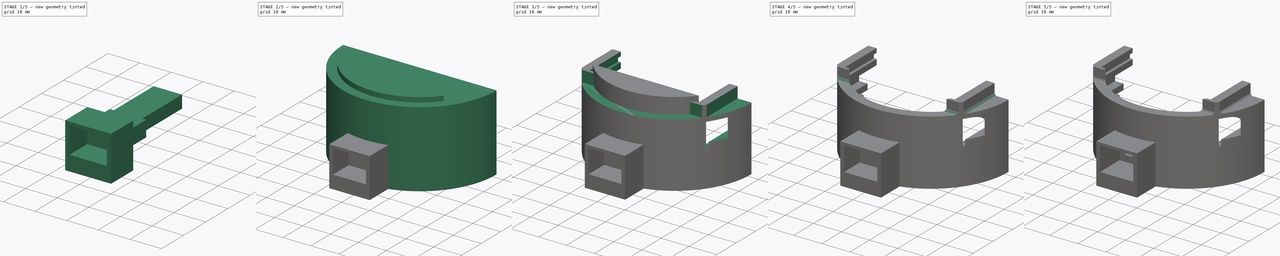
[diagram: build sequence overview — one tinted view per stage of 5, left to right]
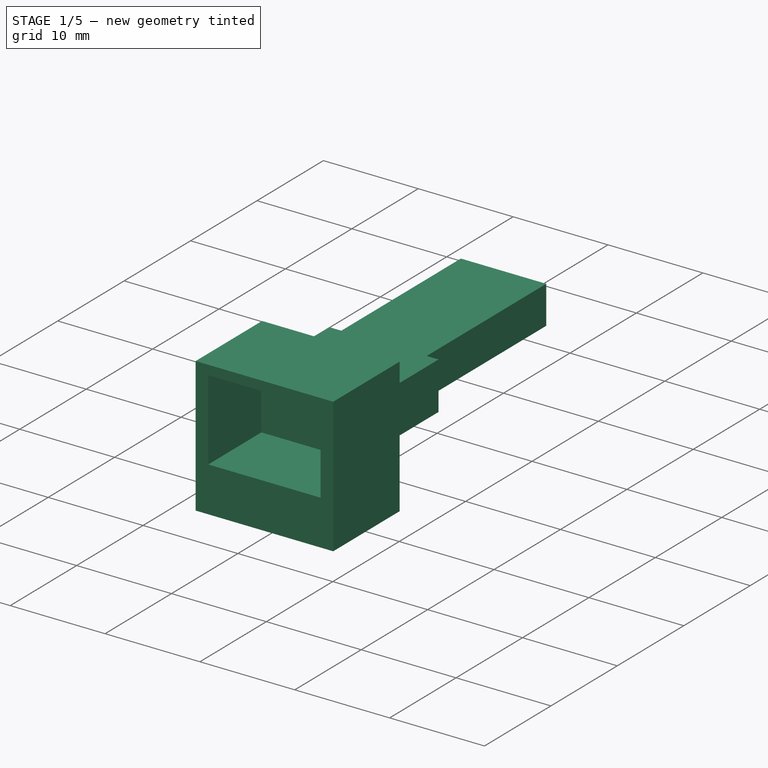
[diagram: stage 1 of 5 — iso view after this stage's code; geometry added in this stage tinted green]
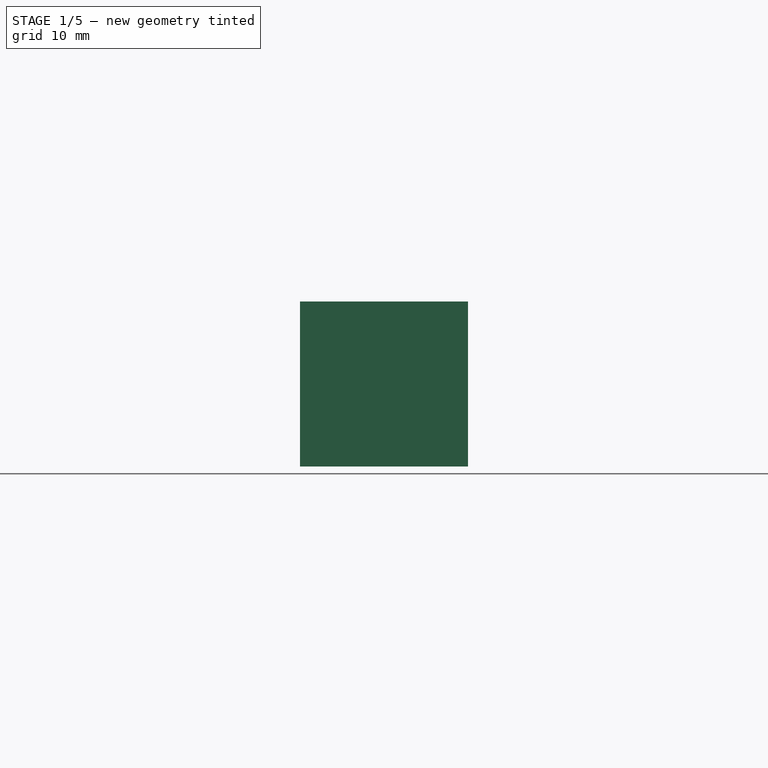
[diagram: stage 1 of 5 — front view after this stage's code; geometry added in this stage tinted green]
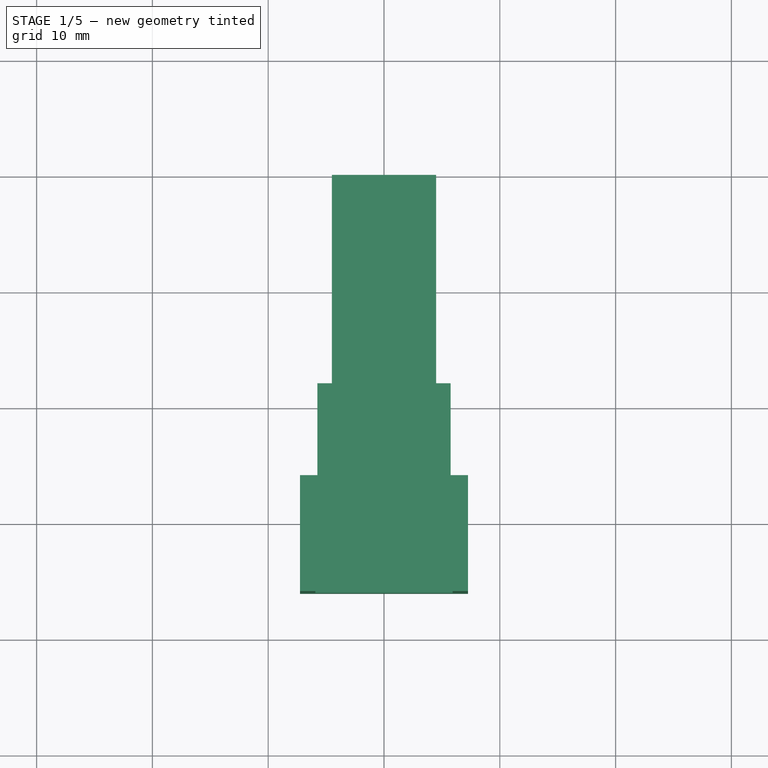
[diagram: stage 1 of 5 — top view after this stage's code; geometry added in this stage tinted green]
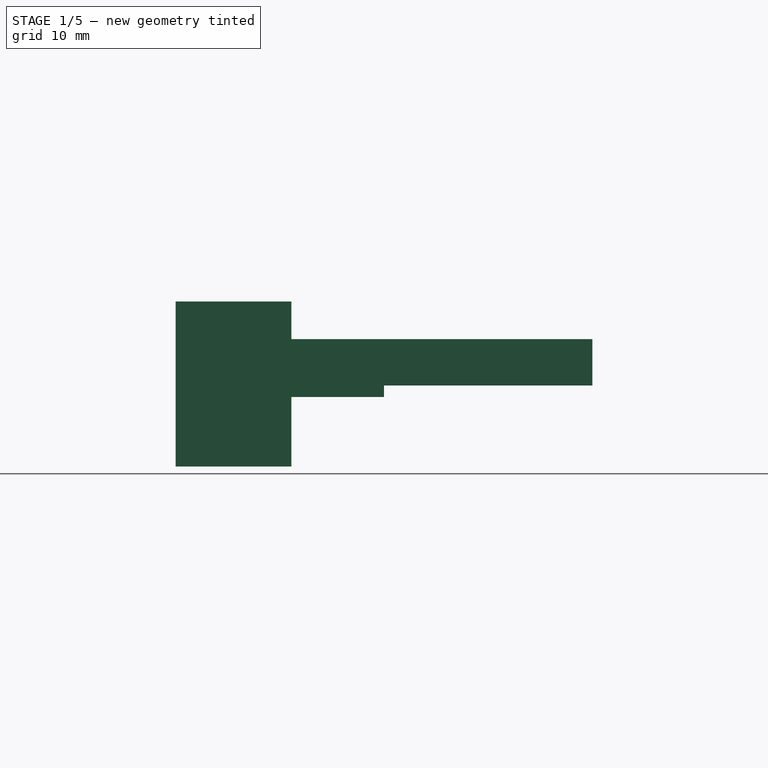
[diagram: stage 1 of 5 — right view after this stage's code; geometry added in this stage tinted green]
FCSTD DOCUMENT  (FreeCAD 0.14R3691 (Git))
Label: PartMount_7-4
License: CC-BY 3.0
LicenseURL: http://creativecommons.org/licenses/by/3.0/
objects: Sketcher::SketchObject×14, Part::Extrusion×13, Part::Cut×8, PartDesign::Fillet×7, Part::MultiFuse×4
note: 46 computed .brp shape members not serialized (recipe doc carries the construction recipe); baked Part::Feature solids carry a one-line shape summary decoded from their .brp

FEATURE [Sketcher::SketchObject] Sketch009  label="PlugCut"
  Placement = pos=(0,-26,0) rot=(-1,0,0;4.71239rad)
  sketch-geometry (4):
    g0: LineSegment StartX=-5.925 StartY=4.25 StartZ=0 EndX=5.925 EndY=4.25 EndZ=0
    g1: LineSegment StartX=5.925 StartY=4.25 StartZ=0 EndX=5.925 EndY=-4.25 EndZ=0
    g2: LineSegment StartX=5.925 StartY=-4.25 StartZ=0 EndX=-5.925 EndY=-4.25 EndZ=0
    g3: LineSegment StartX=-5.925 StartY=-4.25 StartZ=0 EndX=-5.925 EndY=4.25 EndZ=0
  constraints (12):
    c: Coincident(g0,g1)
    c: Coincident(g1,g2)
    c: Coincident(g2,g3)
    c: Coincident(g3,g0)
    c: Horizontal(g0)
    c: Horizontal(g2)
    c: Vertical(g1)
    c: Vertical(g3)
    c: DistanceY(g3) = 8.5
    c: DistanceX(g0) = 11.85
    c: Symmetric(g0,g0,g-2)
    c: Distance(g-1,g0) = 4.25
FEATURE [Sketcher::SketchObject] Sketch010  label="JackCut"
  Placement = pos=(0,0,0) rot=(-1,0,0;4.71239rad)
  sketch-geometry (4):
    g0: LineSegment StartX=4.5 StartY=2 StartZ=0 EndX=-4.5 EndY=2 EndZ=0
    g1: LineSegment StartX=-4.5 StartY=2 StartZ=0 EndX=-4.5 EndY=-2 EndZ=0
    g2: LineSegment StartX=-4.5 StartY=-2 StartZ=0 EndX=4.5 EndY=-2 EndZ=0
    g3: LineSegment StartX=4.5 StartY=-2 StartZ=0 EndX=4.5 EndY=2 EndZ=0
  constraints (12):
    c: Coincident(g0,g1)
    c: Coincident(g1,g2)
    c: Coincident(g2,g3)
    c: Coincident(g3,g0)
    c: Horizontal(g0)
    c: Horizontal(g2)
    c: Vertical(g1)
    c: Vertical(g3)
    c: DistanceY(g1) = -4
    c: DistanceX(g2) = 9
    c: DistanceY(g-1,g0) = 2
    c: Symmetric(g1,g2,g-2)
FEATURE [Sketcher::SketchObject] Sketch011  label="JackWall"
  Placement = pos=(0,-18,0) rot=(-1,0,0;4.71239rad)
  sketch-geometry (4):
    g0: LineSegment StartX=-5.75 StartY=2 StartZ=0 EndX=5.75 EndY=2 EndZ=0
    g1: LineSegment StartX=5.75 StartY=2 StartZ=0 EndX=5.75 EndY=-3 EndZ=0
    g2: LineSegment StartX=5.75 StartY=-3 StartZ=0 EndX=-5.75 EndY=-3 EndZ=0
    g3: LineSegment StartX=-5.75 StartY=-3 StartZ=0 EndX=-5.75 EndY=2 EndZ=0
  constraints (12):
    c: Coincident(g0,g1)
    c: Coincident(g1,g2)
    c: Coincident(g2,g3)
    c: Coincident(g3,g0)
    c: Horizontal(g0)
    c: Horizontal(g2)
    c: Vertical(g1)
    c: Vertical(g3)
    c: DistanceX(g2) = -11.5
    c: Symmetric(g0,g0,g-2)
    c: DistanceY(g1) = -5
    c: DistanceY(g-1,g0) = 2
FEATURE [Sketcher::SketchObject] Sketch012  label="PlugOutsideWall"
  Placement = pos=(0,-26,0) rot=(1,0,0;1.5708rad)
  sketch-geometry (4):
    g0: LineSegment StartX=-7.25 StartY=5.25 StartZ=0 EndX=7.25 EndY=5.25 EndZ=0
    g1: LineSegment StartX=7.25 StartY=5.25 StartZ=0 EndX=7.25 EndY=-9 EndZ=0
    g2: LineSegment StartX=7.25 StartY=-9 StartZ=0 EndX=-7.25 EndY=-9 EndZ=0
    g3: LineSegment StartX=-7.25 StartY=-9 StartZ=0 EndX=-7.25 EndY=5.25 EndZ=0
  constraints (12):
    c: Coincident(g0,g1)
    c: Coincident(g1,g2)
    c: Coincident(g2,g3)
    c: Coincident(g3,g0)
    c: Horizontal(g0)
    c: Horizontal(g2)
    c: Vertical(g1)
    c: Vertical(g3)
    c: DistanceY(g3) = 14.25
    c: DistanceX(g0) = 14.5
    c: Symmetric(g0,g0,g-2)
    c: Distance(g-1,g0) = 5.25
FEATURE [Part::Extrusion] Extrude014
  Base = -> Sketch011
  Dir = (0,-8,0)
  Solid = true
FEATURE [Part::Extrusion] Extrude015
  Base = -> Sketch010
  Dir = (0,-30,0)
  Solid = true
FEATURE [Part::Extrusion] Extrude016
  Base = -> Sketch012
  Dir = (0,-10,0)
  Solid = true
FEATURE [Part::Extrusion] Extrude017
  Base = -> Sketch009
  Dir = (0,-10,0)
  Solid = true
FEATURE [Part::Cut] Cut006
  Base = -> Extrude016
  Tool = -> Extrude017
FEATURE [Sketcher::SketchObject] Sketch013  label="PlugCut001"
  Placement = pos=(0,-28,0) rot=(1,0,0;1.5708rad)
  sketch-geometry (4):
    g0: LineSegment StartX=-5.925 StartY=4.25 StartZ=0 EndX=5.925 EndY=4.25 EndZ=0
    g1: LineSegment StartX=5.925 StartY=4.25 StartZ=0 EndX=5.925 EndY=-4.25 EndZ=0
    g2: LineSegment StartX=5.925 StartY=-4.25 StartZ=0 EndX=-5.925 EndY=-4.25 EndZ=0
    g3: LineSegment StartX=-5.925 StartY=-4.25 StartZ=0 EndX=-5.925 EndY=4.25 EndZ=0
  constraints (12):
    c: Coincident(g0,g1)
    c: Coincident(g1,g2)
    c: Coincident(g2,g3)
    c: Coincident(g3,g0)
    c: Horizontal(g0)
    c: Horizontal(g2)
    c: Vertical(g1)
    c: Vertical(g3)
    c: DistanceY(g3) = 8.5
    c: DistanceX(g0) = 11.85
    c: Symmetric(g0,g0,g-2)
    c: Distance(g-1,g0) = 4.25
FEATURE [Part::Extrusion] Extrude018
  Base = -> Sketch013
  Dir = (0,2,0)
  Solid = true
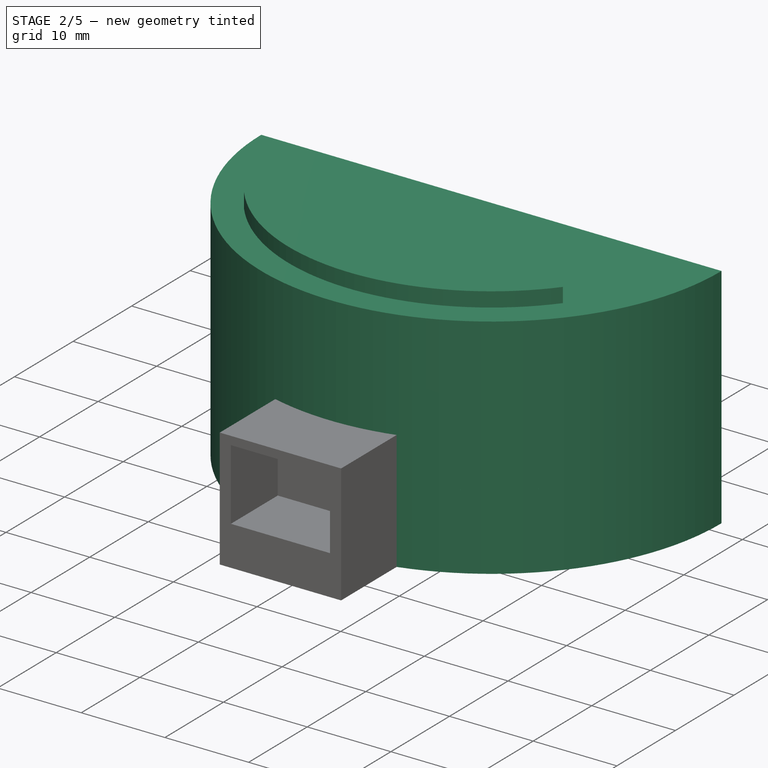
[diagram: stage 2 of 5 — iso view after this stage's code; geometry added in this stage tinted green]
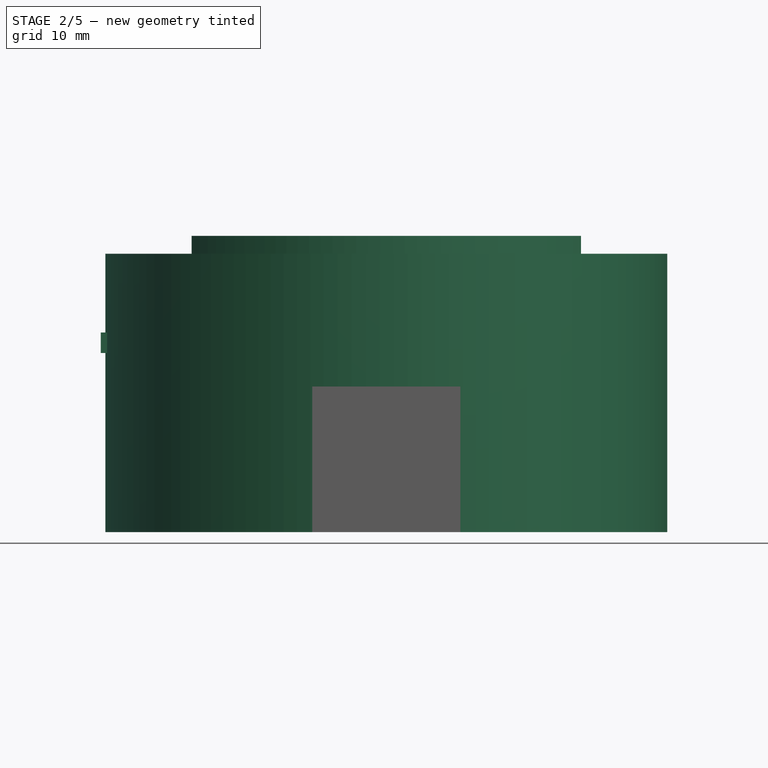
[diagram: stage 2 of 5 — front view after this stage's code; geometry added in this stage tinted green]
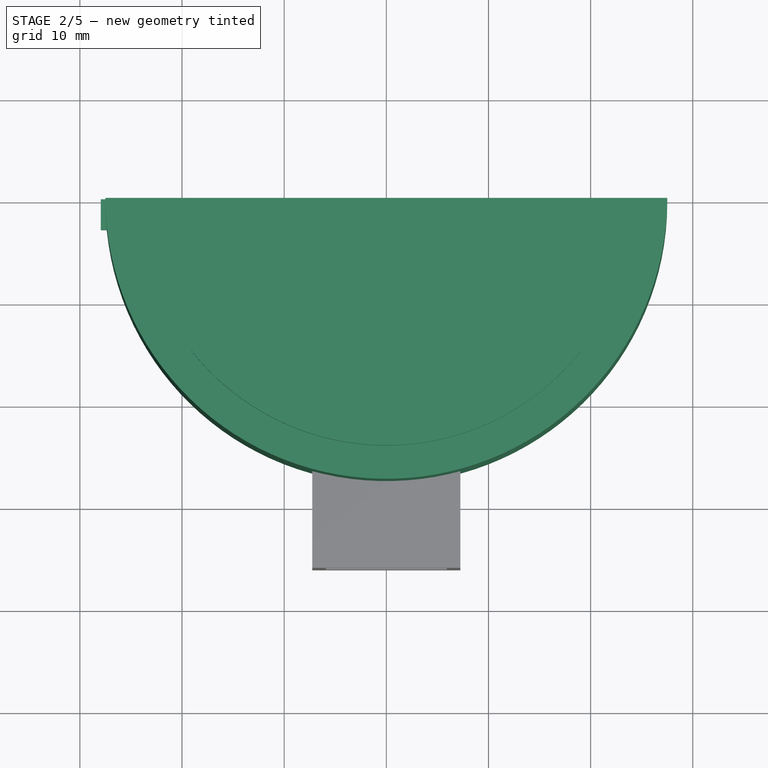
[diagram: stage 2 of 5 — top view after this stage's code; geometry added in this stage tinted green]
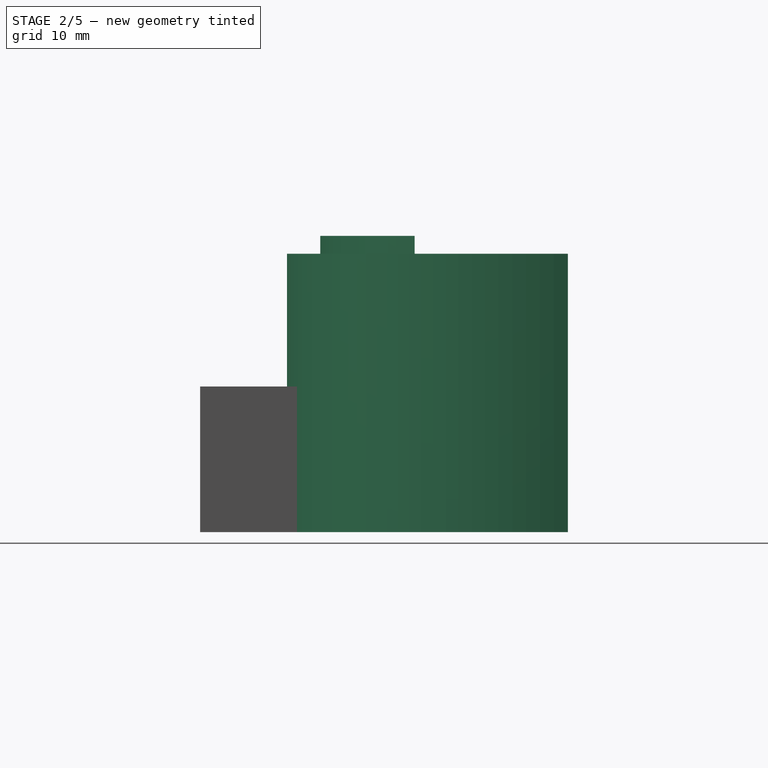
[diagram: stage 2 of 5 — right view after this stage's code; geometry added in this stage tinted green]
FEATURE [Sketcher::SketchObject] Sketch  label="MainShape"
  sketch-geometry (2):
    g0: ArcOfCircle CenterX=0 CenterY=0 CenterZ=0 NormalX=0 NormalY=0 NormalZ=1 Radius=30 StartAngle=3.14159 EndAngle=6.28319
    g1: LineSegment StartX=-30 StartY=0 StartZ=0 EndX=30 EndY=0 EndZ=0
  constraints (6):
    c: Coincident(g0,g-1)
    c: PointOnObject(g0,g-1)
    c: PointOnObject(g0,g-1)
    c: Coincident(g1,g0)
    c: Coincident(g1,g0)
    c: Distance(g-1,g0) = 30
FEATURE [Sketcher::SketchObject] Sketch001  label="MainShape001"
  sketch-geometry (2):
    g0: ArcOfCircle CenterX=0 CenterY=0 CenterZ=0 NormalX=0 NormalY=0 NormalZ=1 Radius=27.5 StartAngle=3.14159 EndAngle=6.28319
    g1: LineSegment StartX=-27.5 StartY=0 StartZ=0 EndX=27.5 EndY=0 EndZ=0
  constraints (6):
    c: Coincident(g0,g-1)
    c: PointOnObject(g0,g-1)
    c: PointOnObject(g0,g-1)
    c: Coincident(g1,g0)
    c: Coincident(g1,g0)
    c: Distance(g-1,g0) = 27.5
FEATURE [Sketcher::SketchObject] Sketch002  label="MainShape002"
  sketch-geometry (2):
    g0: ArcOfCircle CenterX=0 CenterY=0 CenterZ=0 NormalX=0 NormalY=0 NormalZ=1 Radius=24.25 StartAngle=3.14159 EndAngle=6.28319
    g1: LineSegment StartX=-24.25 StartY=0 StartZ=0 EndX=24.25 EndY=0 EndZ=0
  constraints (6):
    c: Coincident(g0,g-1)
    c: PointOnObject(g0,g-1)
    c: PointOnObject(g0,g-1)
    c: Coincident(g1,g0)
    c: Coincident(g1,g0)
    c: Distance(g-1,g0) = 24.25
FEATURE [Sketcher::SketchObject] Sketch003  label="MainShape003"
  Placement = pos=(0,0,2) rot=(0,0,1;0rad)
  sketch-geometry (2):
    g0: ArcOfCircle CenterX=0 CenterY=0 CenterZ=0 NormalX=0 NormalY=0 NormalZ=1 Radius=25.25 StartAngle=3.14159 EndAngle=6.28319
    g1: LineSegment StartX=-25.25 StartY=0 StartZ=0 EndX=25.25 EndY=0 EndZ=0
  constraints (6):
    c: Coincident(g0,g-1)
    c: PointOnObject(g0,g-1)
    c: PointOnObject(g0,g-1)
    c: Coincident(g1,g0)
    c: Coincident(g1,g0)
    c: Distance(g-1,g0) = 25.25
FEATURE [Part::Extrusion] Extrude
  Base = -> Sketch002
  Dir = (0,0,4)
  Solid = true
FEATURE [Part::Extrusion] Extrude002
  Base = -> Sketch003
  Dir = (0,0,1.25)
  Solid = true
FEATURE [Part::MultiFuse] Fusion  label="LilyPadCut"
  Shapes = -> [Extrude,Extrude002]
FEATURE [Part::Extrusion] Extrude004  label="Body"
  Base = -> Sketch001
  Dir = (0,0,18.25)
  Solid = true
FEATURE [Sketcher::SketchObject] Sketch006
  Placement = pos=(0,0,0) rot=(0,0.707107,0.707107;3.14159rad)
  sketch-geometry (4):
    g0: LineSegment StartX=24.9554 StartY=10.5387 StartZ=0 EndX=27.9554 EndY=10.5387 EndZ=0
    g1: LineSegment StartX=27.9554 StartY=10.5387 StartZ=0 EndX=27.9554 EndY=8.53866 EndZ=0
    g2: LineSegment StartX=27.9554 StartY=8.53866 StartZ=0 EndX=24.9554 EndY=8.53866 EndZ=0
    g3: LineSegment StartX=24.9554 StartY=8.53866 StartZ=0 EndX=24.9554 EndY=10.5387 EndZ=0
  constraints (10):
    c: Coincident(g0,g1)
    c: Coincident(g1,g2)
    c: Coincident(g2,g3)
    c: Coincident(g3,g0)
    c: Horizontal(g0)
    c: Horizontal(g2)
    c: Vertical(g1)
    c: Vertical(g3)
    c: DistanceY(g3) = 2
    c: DistanceX(g2) = -3
FEATURE [Part::Extrusion] Extrude011
  Base = -> Sketch006
  Dir = (0,-3,0)
  Solid = true
FEATURE [Sketcher::SketchObject] Sketch007  label="ButtonPadding"
  sketch-geometry (4):
    g0: ArcOfCircle CenterX=0 CenterY=0 CenterZ=0 NormalX=0 NormalY=0 NormalZ=1 Radius=27.5 StartAngle=3.14159 EndAngle=6.28319
    g1: LineSegment StartX=-27.5 StartY=0 StartZ=0 EndX=-24.25 EndY=0 EndZ=0
    g2: ArcOfCircle CenterX=0 CenterY=0 CenterZ=0 NormalX=0 NormalY=0 NormalZ=1 Radius=24.25 StartAngle=3.14159 EndAngle=6.28319
    g3: LineSegment StartX=24.25 StartY=0 StartZ=0 EndX=27.5 EndY=0 EndZ=0
  constraints (11):
    c: Coincident(g0,g-1)
    c: PointOnObject(g0,g-1)
    c: PointOnObject(g0,g-1)
    c: Coincident(g1,g0)
    c: Coincident(g3,g0)
    c: Distance(g-1,g0) = 27.5
    c: Coincident(g2,g-1)
    c: Radius(g2) = 24.25
    c: Tangent(g1,g3)
    c: Coincident(g2,g3)
    c: Coincident(g1,g2)
FEATURE [Part::Extrusion] Extrude012
  Base = -> Sketch007
  Dir = (0,0,-9)
  Solid = true
FEATURE [Sketcher::SketchObject] Sketch008  label="MainShape004"
  sketch-geometry (2):
    g0: ArcOfCircle CenterX=0 CenterY=0 CenterZ=0 NormalX=0 NormalY=0 NormalZ=1 Radius=24.25 StartAngle=3.8085 EndAngle=5.61628
    g1: LineSegment StartX=-19.0542 StartY=-15 StartZ=0 EndX=19.0542 EndY=-15 EndZ=0
  constraints (6):
    c: Coincident(g1,g0)
    c: Coincident(g1,g0)
    c: Radius(g0) = 24.25
    c: Symmetric(g0,g0,g-2)
    c: Coincident(g0,g-1)
    c: Distance(g-1,g1) = 15
FEATURE [Part::Extrusion] Extrude013
  Base = -> Sketch008
  Dir = (0,0,20)
  Solid = true
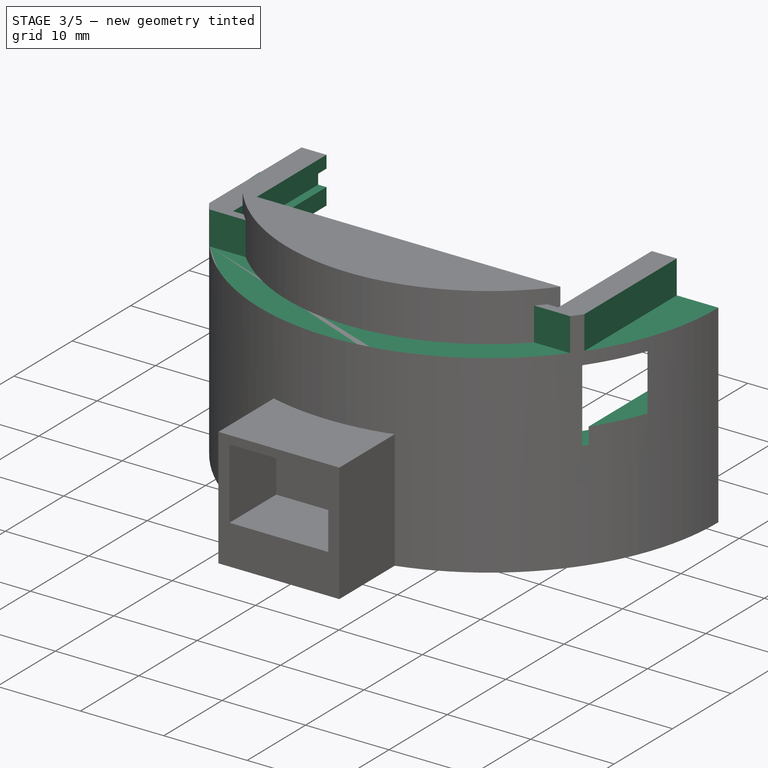
[diagram: stage 3 of 5 — iso view after this stage's code; geometry added in this stage tinted green]
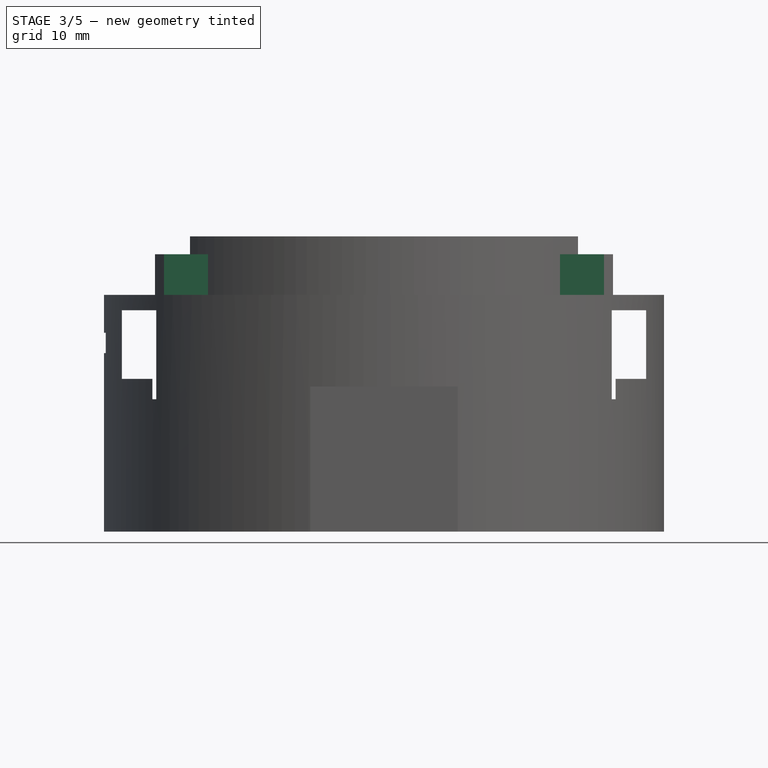
[diagram: stage 3 of 5 — front view after this stage's code; geometry added in this stage tinted green]
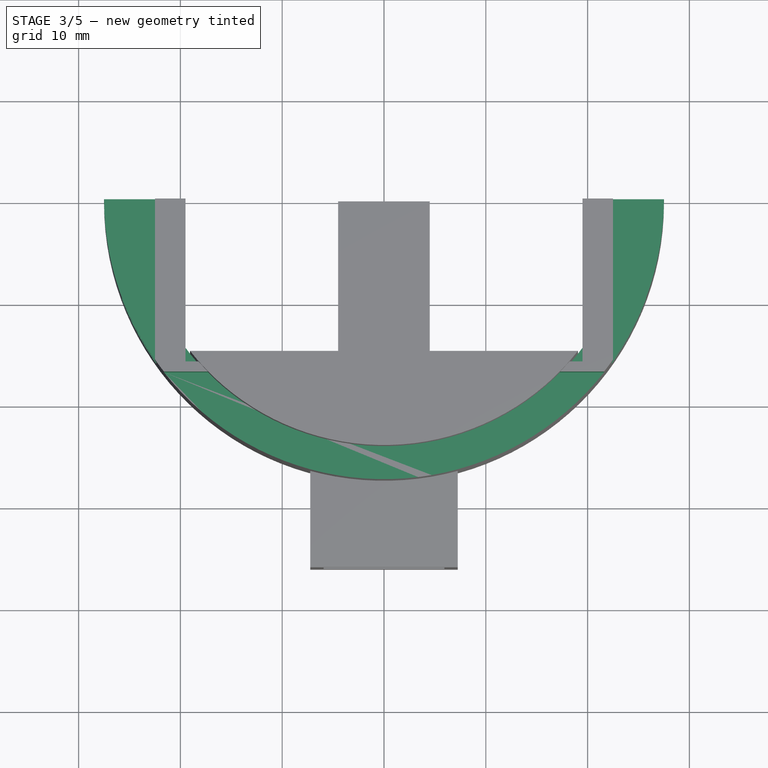
[diagram: stage 3 of 5 — top view after this stage's code; geometry added in this stage tinted green]
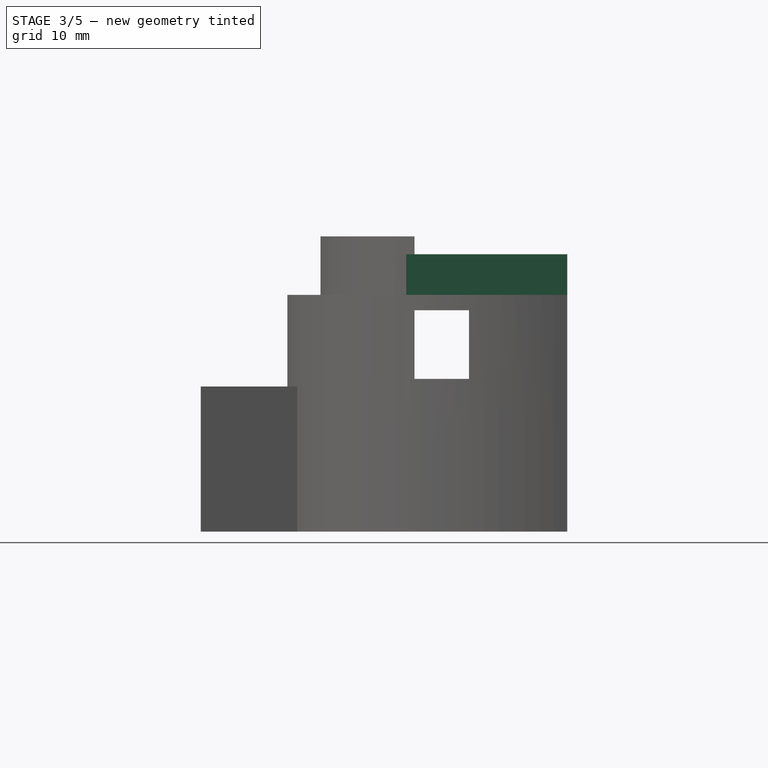
[diagram: stage 3 of 5 — right view after this stage's code; geometry added in this stage tinted green]
FEATURE [Sketcher::SketchObject] Sketch004  label="BattAndMotor"
  ExternalGeometry = -> [Extrude004]
  Placement = pos=(0,0,0) rot=(0,0.707107,0.707107;3.14159rad)
  Support = -> Extrude004 [Face2]
  sketch-geometry (20):
    g0: LineSegment StartX=-22.75 StartY=4 StartZ=0 EndX=22.75 EndY=4 EndZ=0
    g1: LineSegment StartX=22.75 StartY=4 StartZ=0 EndX=22.75 EndY=6 EndZ=0
    g2: LineSegment StartX=22.75 StartY=6 StartZ=0 EndX=25.75 EndY=6 EndZ=0
    g3: LineSegment StartX=25.75 StartY=6 StartZ=0 EndX=25.75 EndY=12.75 EndZ=0
    g4: LineSegment StartX=25.75 StartY=12.75 StartZ=0 EndX=19.5 EndY=12.75 EndZ=0
    g5: LineSegment StartX=19.5 StartY=12.75 StartZ=0 EndX=19.5 EndY=14.75 EndZ=0
    g6: LineSegment StartX=19.5 StartY=14.75 StartZ=0 EndX=20.5 EndY=14.75 EndZ=0
    g7: LineSegment StartX=20.5 StartY=14.75 StartZ=0 EndX=20.5 EndY=16.75 EndZ=0
    g8: LineSegment StartX=20.5 StartY=16.75 StartZ=0 EndX=19.5 EndY=16.75 EndZ=0
    g9: LineSegment StartX=19.5 StartY=16.75 StartZ=0 EndX=19.5 EndY=18.25 EndZ=0
    g10: LineSegment StartX=19.5 StartY=18.25 StartZ=0 EndX=-19.5 EndY=18.25 EndZ=0
    g11: LineSegment StartX=-19.5 StartY=18.25 StartZ=0 EndX=-19.5 EndY=16.75 EndZ=0
    g12: LineSegment StartX=-19.5 StartY=16.75 StartZ=0 EndX=-20.5 EndY=16.75 EndZ=0
    g13: LineSegment StartX=-20.5 StartY=16.75 StartZ=0 EndX=-20.5 EndY=14.75 EndZ=0
    g14: LineSegment StartX=-20.5 StartY=14.75 StartZ=0 EndX=-19.5 EndY=14.75 EndZ=0
    g15: LineSegment StartX=-19.5 StartY=14.75 StartZ=0 EndX=-19.5 EndY=12.75 EndZ=0
    g16: LineSegment StartX=-19.5 StartY=12.75 StartZ=0 EndX=-25.75 EndY=12.75 EndZ=0
    g17: LineSegment StartX=-25.75 StartY=12.75 StartZ=0 EndX=-25.75 EndY=6 EndZ=0
    g18: LineSegment StartX=-25.75 StartY=6 StartZ=0 EndX=-22.75 EndY=6 EndZ=0
    g19: LineSegment StartX=-22.75 StartY=6 StartZ=0 EndX=-22.75 EndY=4 EndZ=0
  constraints (58):
    c: Horizontal(g0)
    c: Coincident(g0,g1)
    c: Coincident(g1,g2)
    c: Horizontal(g2)
    c: Coincident(g2,g3)
    c: Vertical(g3)
    c: Coincident(g3,g4)
    c: Horizontal(g4)
    c: Coincident(g4,g5)
    c: Vertical(g5)
    c: Coincident(g5,g6)
    c: Coincident(g6,g7)
    c: Vertical(g7)
    c: Coincident(g7,g8)
    c: Horizontal(g8)
    c: Coincident(g8,g9)
    c: Vertical(g9)
    c: Coincident(g9,g10)
    c: Horizontal(g10)
    c: Coincident(g10,g11)
    c: Vertical(g11)
    c: Coincident(g11,g12)
    c: Coincident(g12,g13)
    c: Vertical(g13)
    c: Coincident(g13,g14)
    c: Horizontal(g14)
    c: Coincident(g14,g15)
    c: Vertical(g15)
    c: Coincident(g15,g16)
    c: Horizontal(g16)
    c: Coincident(g16,g17)
    c: Vertical(g17)
    c: Coincident(g17,g18)
    c: Coincident(g18,g19)
    c: Coincident(g19,g0)
    c: Vertical(g19)
    c: Symmetric(g10,g9,g-2)
    c: Symmetric(g12,g7,g-2)
    c: Symmetric(g6,g13,g-2)
    c: Horizontal(g12)
    c: Horizontal(g6)
    c: Symmetric(g16,g3,g-2)
    c: Symmetric(g14,g5,g-2)
    c: Symmetric(g2,g17,g-2)
    c: Vertical(g1)
    c: Horizontal(g18)
    c: Symmetric(g0,g0,g-2)
    c: Distance(g18) = 3
    c: Distance(g13) = 2
    c: Distance(g11) = 1.5
    c: Distance(g17) = 6.75
    c: Distance(g1) = 2
    c: Distance(g14) = 1
    c: Distance(g12) = 1
    c: Distance(g15) = 2
    c: Distance(g0) = 45.5
    c: PointOnObject(g10,g-3)
    c: Distance(g10) = 39
FEATURE [Sketcher::SketchObject] Sketch005  label="ExtraMaterial"
  Placement = pos=(0,0,18.25) rot=(0,0,1;0rad)
  Support = -> Extrude004 [Face4]
  sketch-geometry (6):
    g0: ArcOfCircle CenterX=0 CenterY=0 CenterZ=0 NormalX=0 NormalY=0 NormalZ=1 Radius=30 StartAngle=3.14159 EndAngle=6.28319
    g1: LineSegment StartX=-30 StartY=0 StartZ=0 EndX=-22.5 EndY=0 EndZ=0
    g2: LineSegment StartX=-22.5 StartY=0 StartZ=0 EndX=-22.5 EndY=-17 EndZ=0
    g3: LineSegment StartX=-22.5 StartY=-17 StartZ=0 EndX=22.5 EndY=-17 EndZ=0
    g4: LineSegment StartX=22.5 StartY=-17 StartZ=0 EndX=22.5 EndY=0 EndZ=0
    g5: LineSegment StartX=22.5 StartY=0 StartZ=0 EndX=30 EndY=0 EndZ=0
  constraints (18):
    c: Coincident(g0,g-1)
    c: PointOnObject(g0,g-1)
    c: PointOnObject(g0,g-1)
    c: Coincident(g1,g0)
    c: Horizontal(g1)
    c: Coincident(g1,g2)
    c: Vertical(g2)
    c: Coincident(g2,g3)
    c: Horizontal(g3)
    c: Coincident(g3,g4)
    c: Vertical(g4)
    c: Coincident(g4,g5)
    c: Coincident(g5,g0)
    c: Horizontal(g5)
    c: Radius(g0) = 30
    c: Symmetric(g1,g4,g-2)
    c: Distance(g1) = 7.5
    c: Distance(g2) = 17
FEATURE [Part::Extrusion] Extrude008
  Base = -> Sketch004
  Dir = (0,-16,0)
  Solid = true
FEATURE [Part::Extrusion] Extrude010
  Base = -> Sketch005
  Dir = (0,0,-4)
  Solid = true
FEATURE [Part::Cut] Cut
  Base = -> Extrude004
  Tool = -> Fusion
FEATURE [Part::Cut] Cut001
  Base = -> Cut
  Tool = -> Extrude008
FEATURE [Part::Cut] Cut002
  Base = -> Cut001
  Tool = -> Extrude010
FEATURE [Part::Cut] Cut003
  Base = -> Cut002
  Tool = -> Extrude011
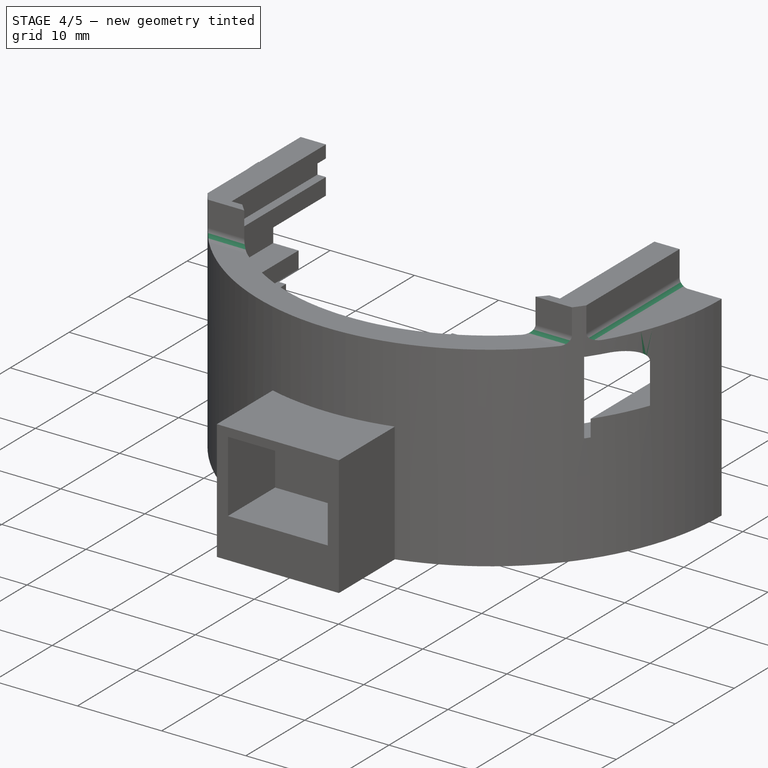
[diagram: stage 4 of 5 — iso view after this stage's code; geometry added in this stage tinted green]
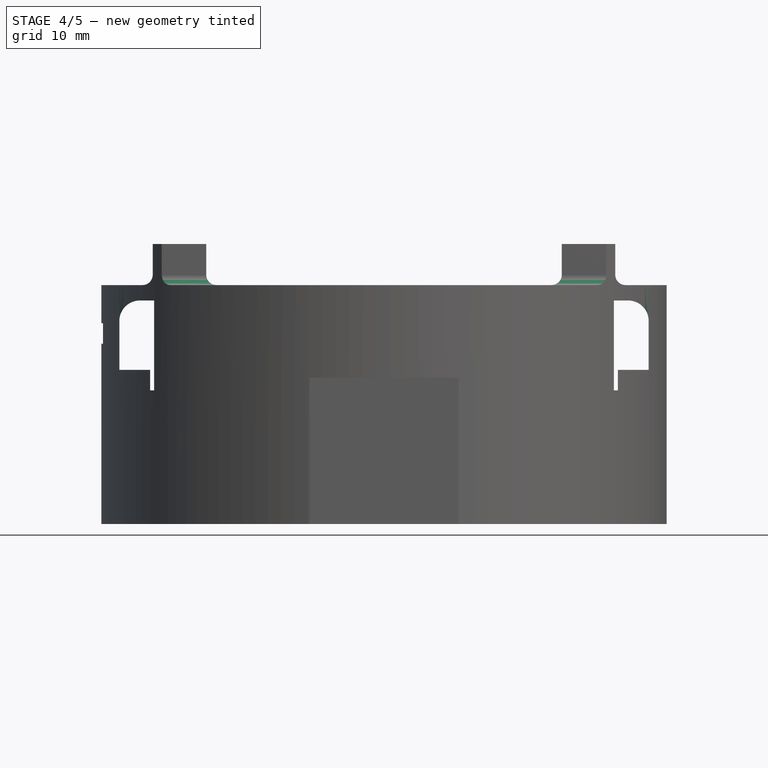
[diagram: stage 4 of 5 — front view after this stage's code; geometry added in this stage tinted green]
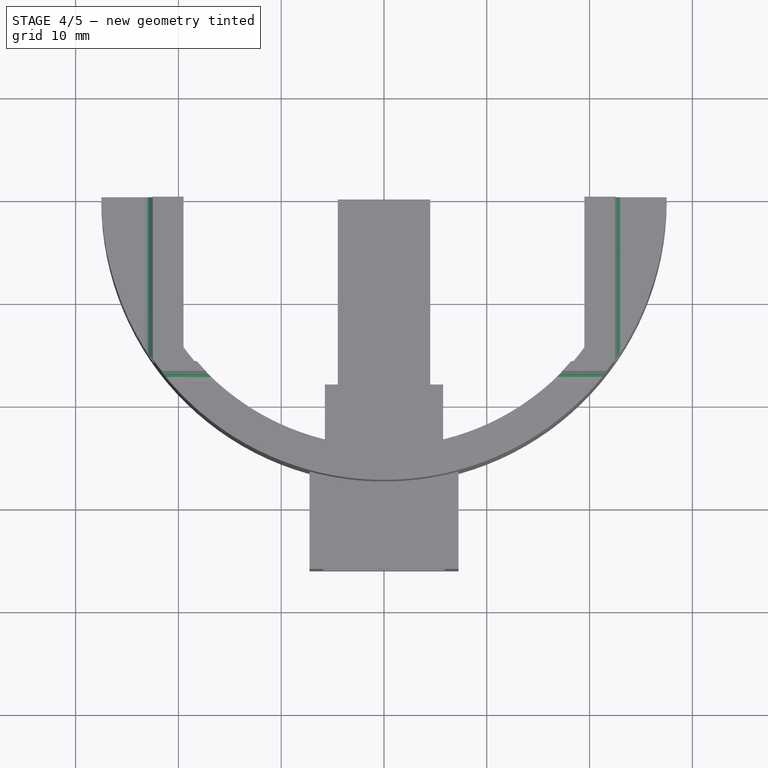
[diagram: stage 4 of 5 — top view after this stage's code; geometry added in this stage tinted green]
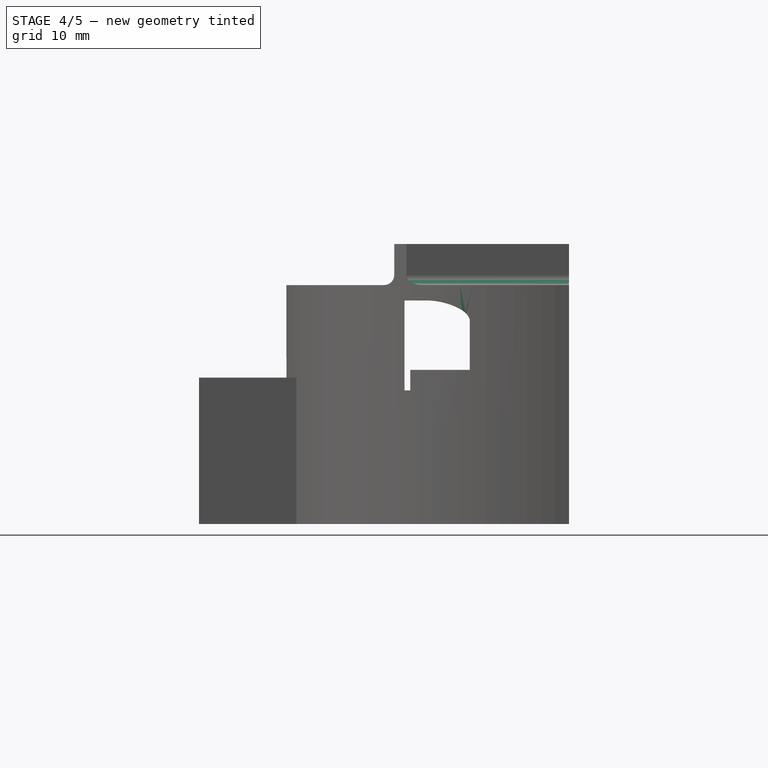
[diagram: stage 4 of 5 — right view after this stage's code; geometry added in this stage tinted green]
FEATURE [Part::MultiFuse] Fusion001
  Shapes = -> [Extrude012,Cut003]
FEATURE [Part::Cut] Cut004
  Base = -> Fusion001
  Tool = -> Extrude013
FEATURE [PartDesign::Fillet] Fillet
  Base = -> Cut004 [Edge101,Edge97]
  Radius = 1
FEATURE [PartDesign::Fillet] Fillet001
  Base = -> Fillet [Edge74,Edge44]
  Radius = 1
FEATURE [PartDesign::Fillet] Fillet002
  Base = -> Fillet001 [Edge109]
  Radius = 2
FEATURE [PartDesign::Fillet] Fillet003
  Base = -> Fillet002 [Edge140]
  Radius = 2
FEATURE [Part::MultiFuse] Fusion002
  Shapes = -> [Fillet003,Extrude014]
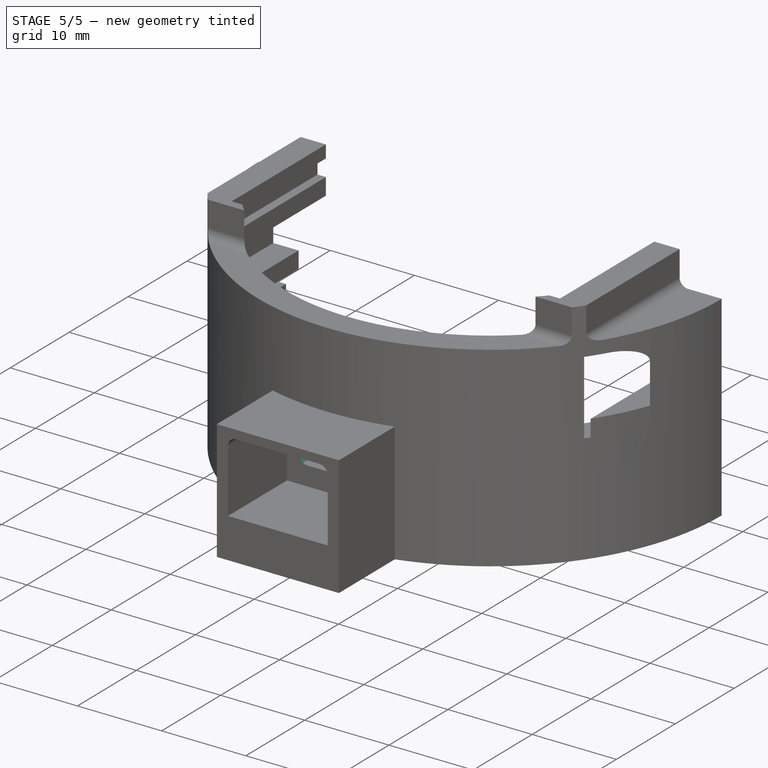
[diagram: stage 5 of 5 — iso view after this stage's code; geometry added in this stage tinted green]
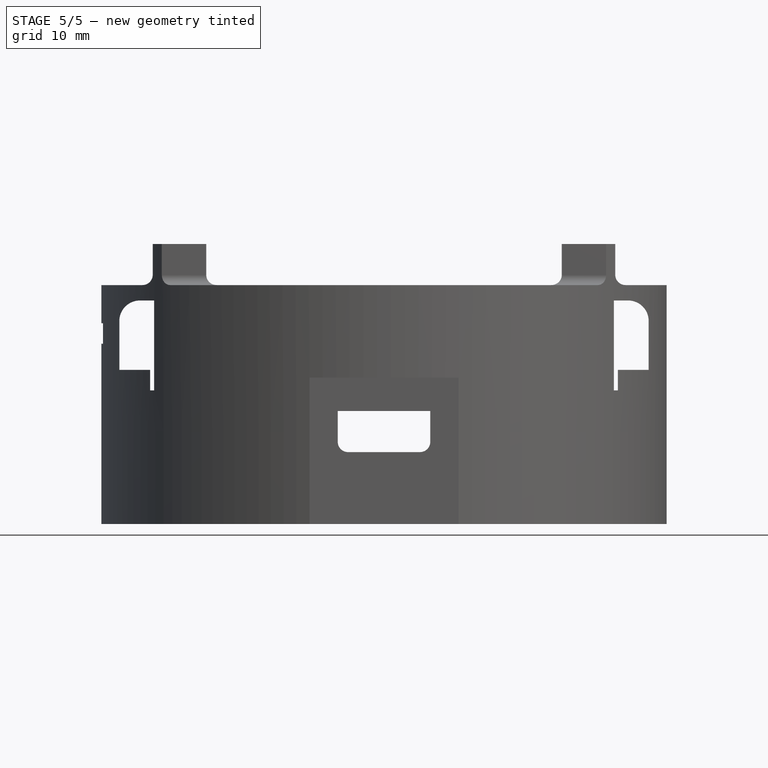
[diagram: stage 5 of 5 — front view after this stage's code; geometry added in this stage tinted green]
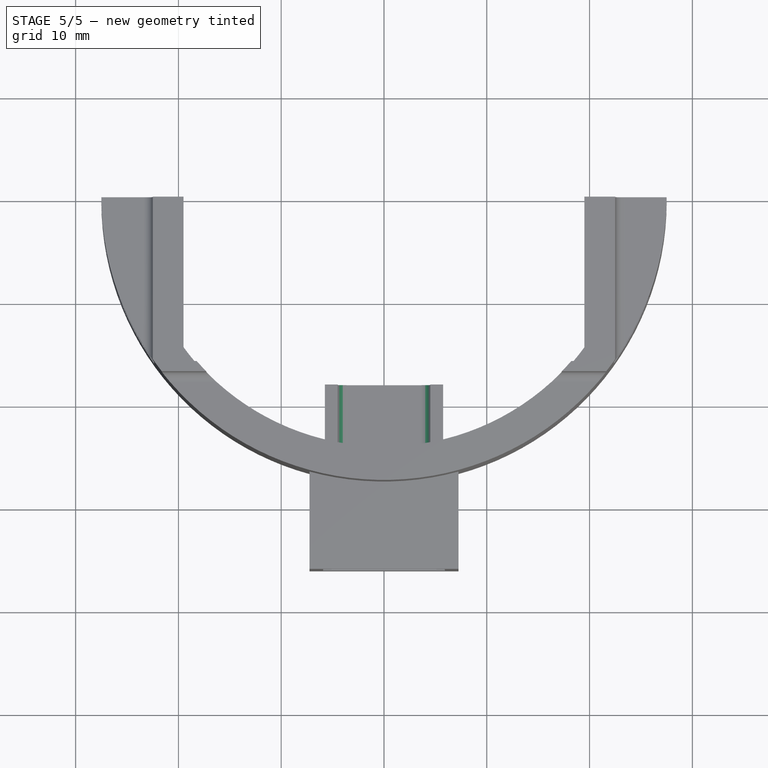
[diagram: stage 5 of 5 — top view after this stage's code; geometry added in this stage tinted green]
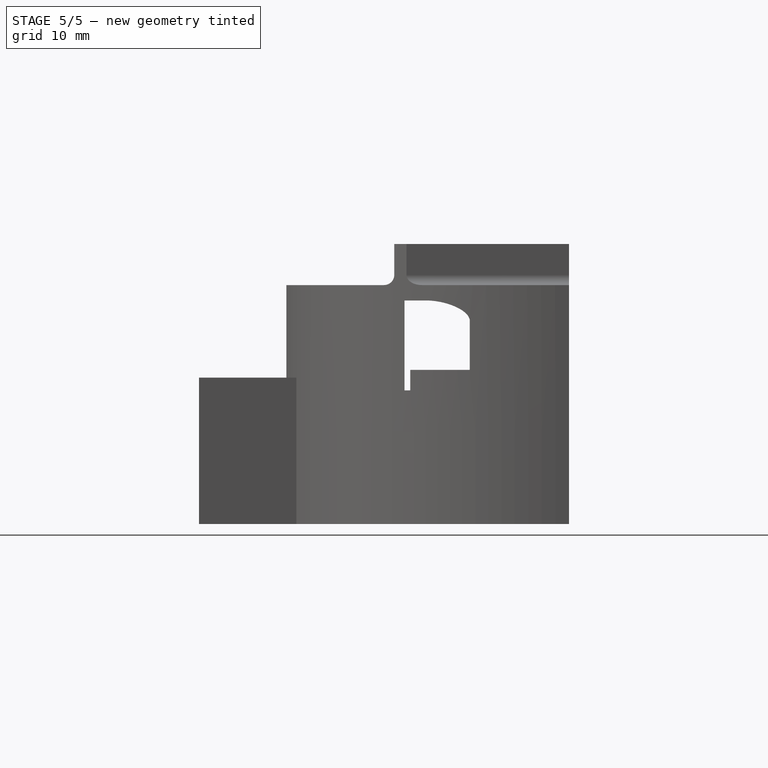
[diagram: stage 5 of 5 — right view after this stage's code; geometry added in this stage tinted green]
FEATURE [Part::Cut] Cut005
  Base = -> Fusion002
  Tool = -> Extrude015
FEATURE [Part::MultiFuse] Fusion003
  Shapes = -> [Cut005,Cut006]
FEATURE [Part::Cut] Cut007
  Base = -> Fusion003
  Tool = -> Extrude018
FEATURE [PartDesign::Fillet] Fillet004
  Base = -> Cut007 [Edge16,Edge12]
  Radius = 1
FEATURE [PartDesign::Fillet] Fillet005
  Base = -> Fillet004 [Edge27]
  Radius = 2
FEATURE [PartDesign::Fillet] Fillet006
  Base = -> Fillet005 [Edge267,Edge268]
  Radius = 1
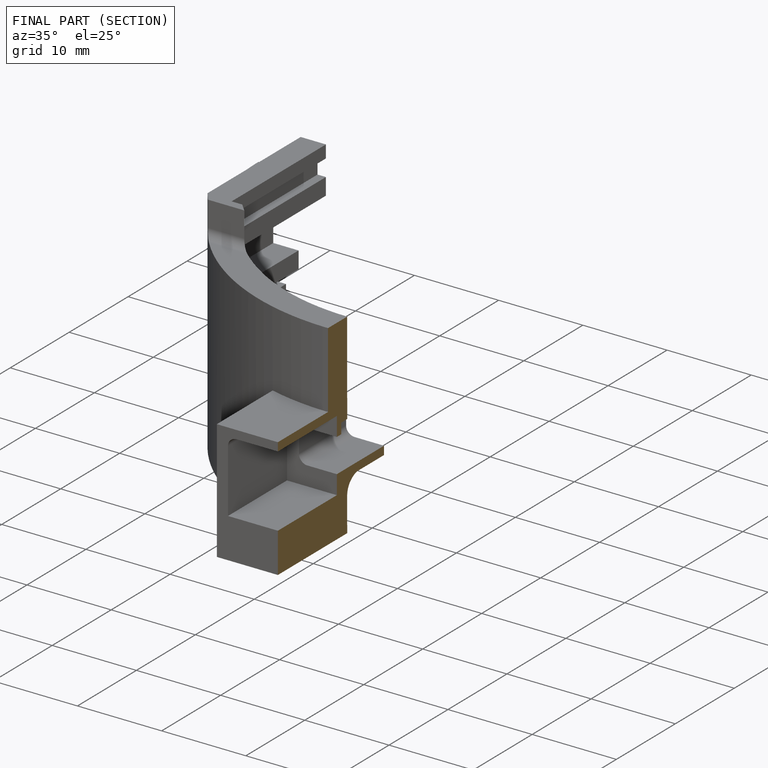
[diagram: finished part — half-section view (interior)]
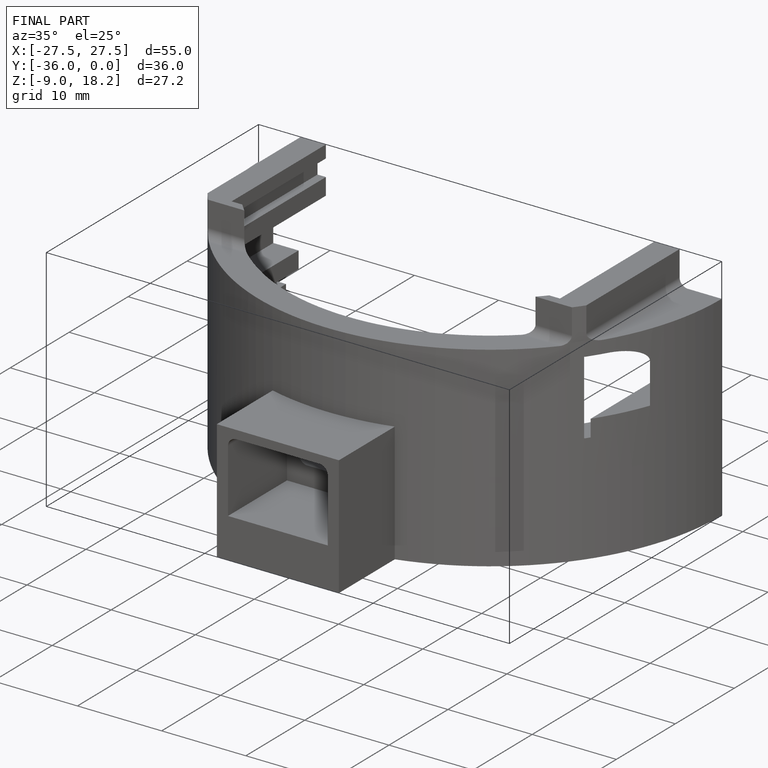
[diagram: finished part — iso view with bounding-box wireframe]
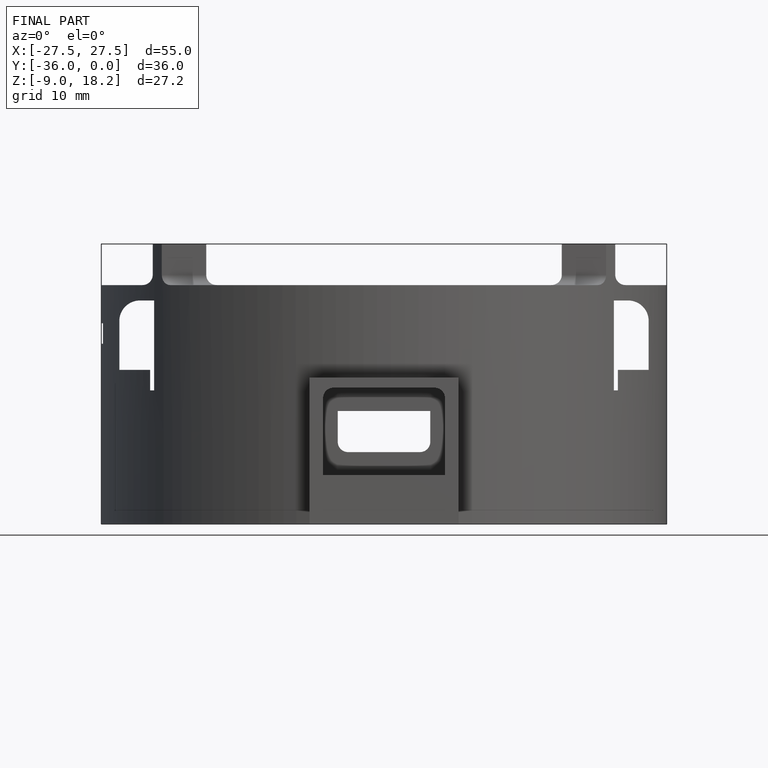
[diagram: finished part — front view with bounding-box wireframe]
